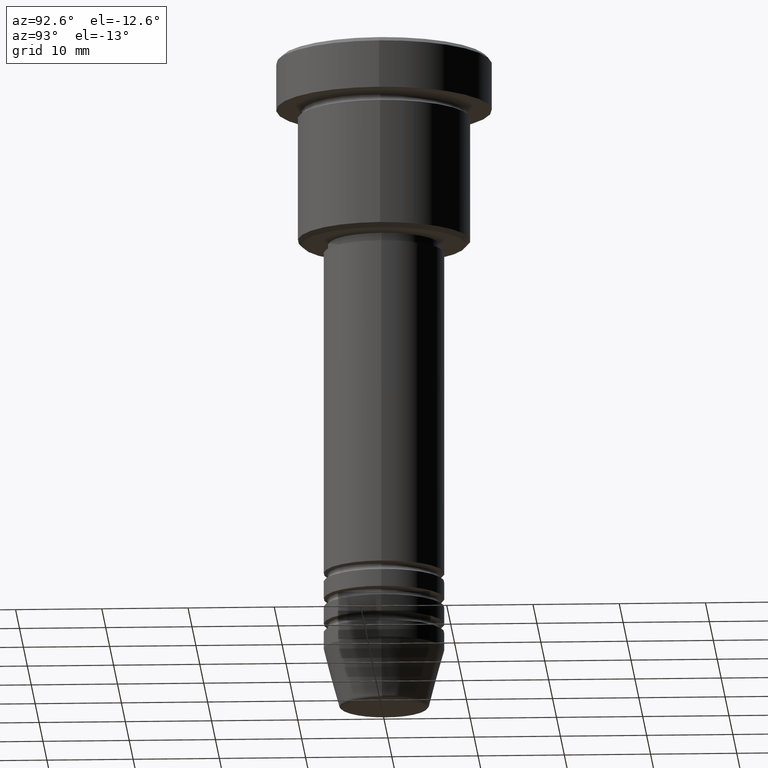
[diagram: clean part render]
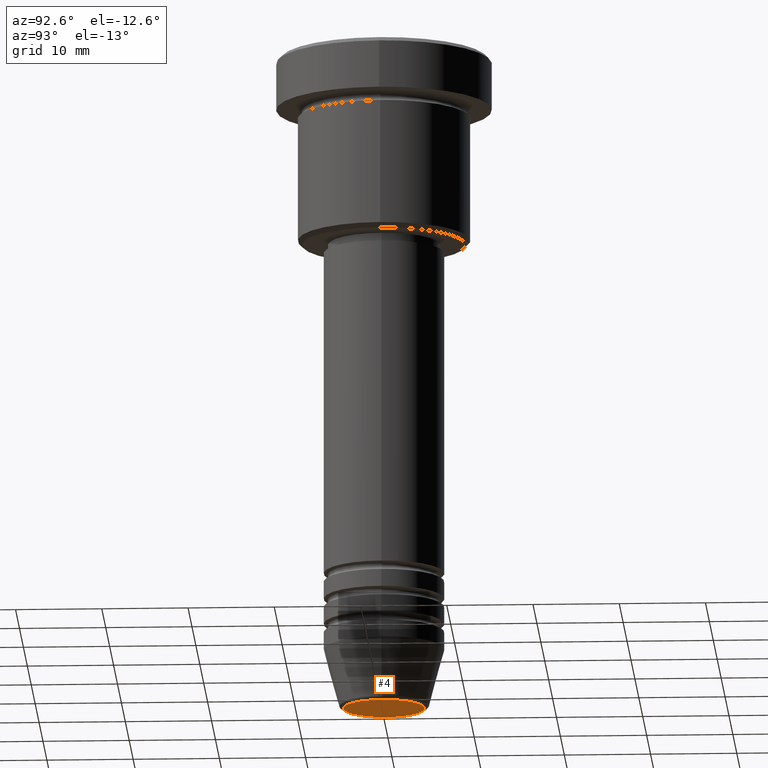
[diagram: same view with one face highlighted and labeled with its STEP entity id]
A machine part, auxiliary view. The second image highlights one B-rep face of the part: STEP entity #4.
In plain terms, the highlighted planar face has unit normal (0, -0, 1).
Its self-contained STEP definition (entity closure, byte-faithful):
#3 = CARTESIAN_POINT ( 'NONE',  ( 4.740692158992654726, 0.000000000000000000, -77.00000000000001421 ) ) ;
#4 = ADVANCED_FACE ( 'NONE', ( #657 ), #195, .F. ) ;
#30 = AXIS2_PLACEMENT_3D ( 'NONE', #786, #585, #236 ) ;
#81 = EDGE_LOOP ( 'NONE', ( #260, #272 ) ) ;
#191 = EDGE_CURVE ( 'NONE', #983, #800, #544, .T. ) ;
#195 = PLANE ( 'NONE',  #1176 ) ;
#236 = DIRECTION ( 'NONE',  ( 1.000000000000000000, 0.000000000000000000, 0.000000000000000000 ) ) ;
#260 = ORIENTED_EDGE ( 'NONE', *, *, #900, .T. ) ;
#272 = ORIENTED_EDGE ( 'NONE', *, *, #191, .T. ) ;
#291 = CARTESIAN_POINT ( 'NONE',  ( 0.000000000000000000, 0.000000000000000000, -77.00000000000001421 ) ) ;
#544 = CIRCLE ( 'NONE', #30, 4.740692158992654726 ) ;
#571 = DIRECTION ( 'NONE',  ( 0.000000000000000000, -0.000000000000000000, 1.000000000000000000 ) ) ;
#585 = DIRECTION ( 'NONE',  ( 0.000000000000000000, 0.000000000000000000, -1.000000000000000000 ) ) ;
#657 = FACE_OUTER_BOUND ( 'NONE', #81, .T. ) ;
#672 = DIRECTION ( 'NONE',  ( 0.000000000000000000, 0.000000000000000000, -1.000000000000000000 ) ) ;
#691 = CARTESIAN_POINT ( 'NONE',  ( -4.740692158992654726, 6.101402971097975816E-16, -77.00000000000001421 ) ) ;
#709 = AXIS2_PLACEMENT_3D ( 'NONE', #1023, #672, #1031 ) ;
#715 = CIRCLE ( 'NONE', #709, 4.740692158992654726 ) ;
#756 = DIRECTION ( 'NONE',  ( 1.000000000000000000, 0.000000000000000000, 0.000000000000000000 ) ) ;
#786 = CARTESIAN_POINT ( 'NONE',  ( 0.000000000000000000, 0.000000000000000000, -77.00000000000001421 ) ) ;
#800 = VERTEX_POINT ( 'NONE', #3 ) ;
#900 = EDGE_CURVE ( 'NONE', #800, #983, #715, .T. ) ;
#983 = VERTEX_POINT ( 'NONE', #691 ) ;
#1023 = CARTESIAN_POINT ( 'NONE',  ( 0.000000000000000000, 0.000000000000000000, -77.00000000000001421 ) ) ;
#1031 = DIRECTION ( 'NONE',  ( 1.000000000000000000, 0.000000000000000000, 0.000000000000000000 ) ) ;
#1176 = AXIS2_PLACEMENT_3D ( 'NONE', #291, #571, #756 ) ;